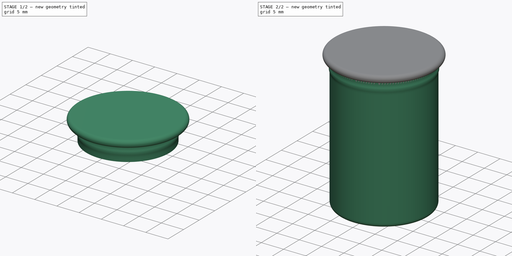
[diagram: build sequence overview — one tinted view per stage of 2, left to right]
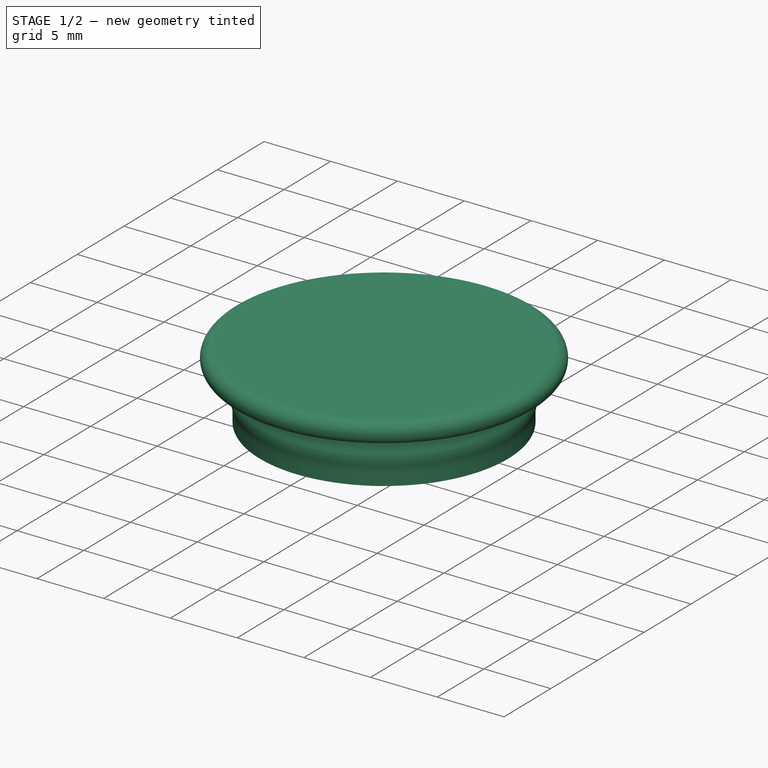
[diagram: stage 1 of 2 — iso view after this stage's code; geometry added in this stage tinted green]
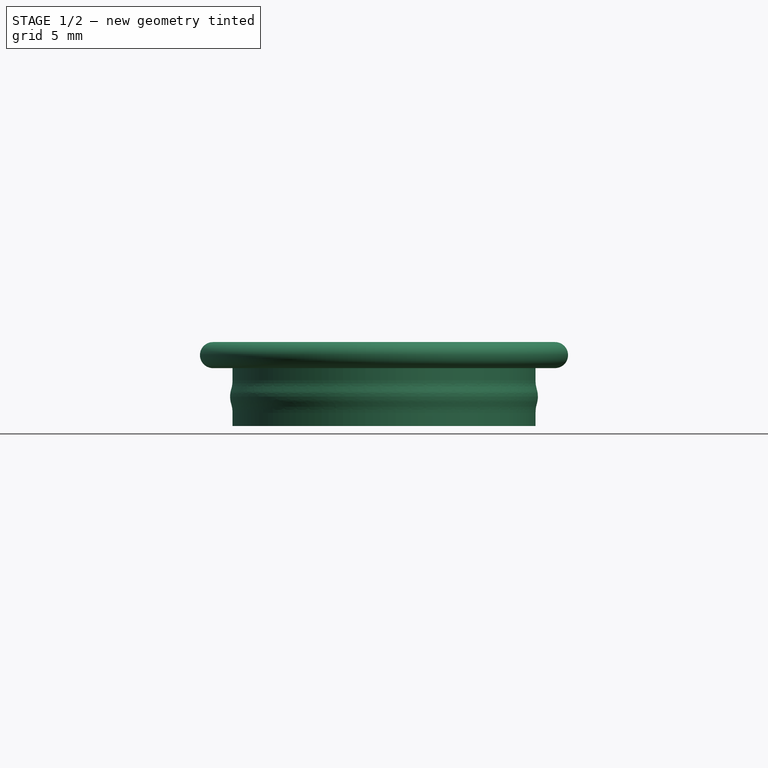
[diagram: stage 1 of 2 — front view after this stage's code; geometry added in this stage tinted green]
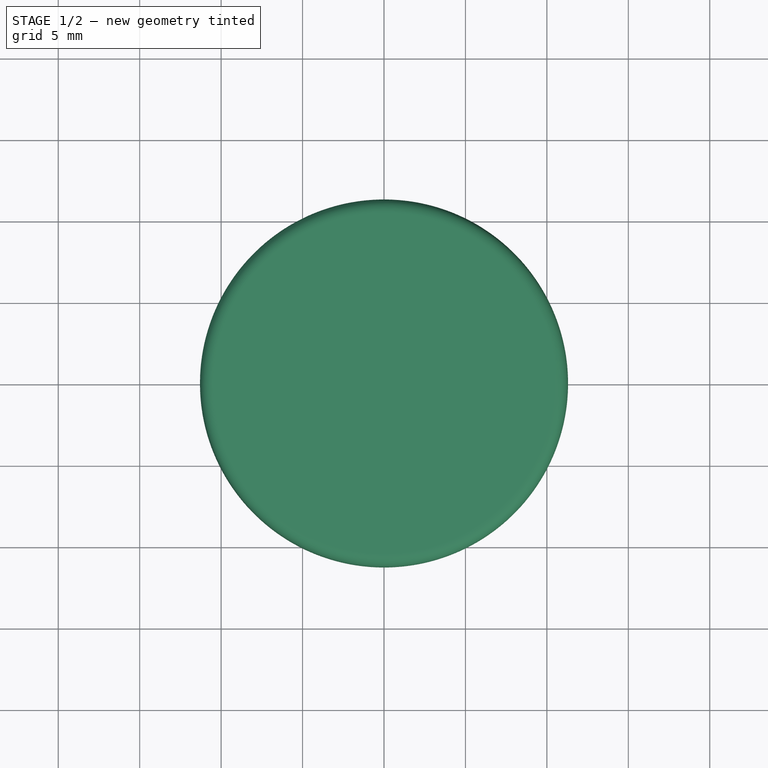
[diagram: stage 1 of 2 — top view after this stage's code; geometry added in this stage tinted green]
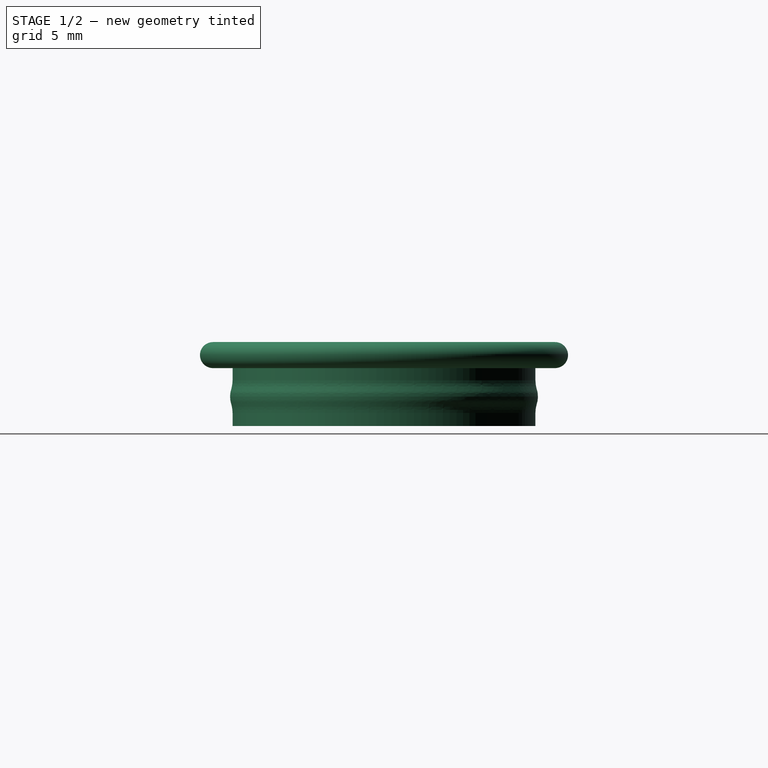
[diagram: stage 1 of 2 — right view after this stage's code; geometry added in this stage tinted green]
FCSTD DOCUMENT  (FreeCAD 0.20R29410 (Git))
Label: Capsule2
License: All rights reserved
LicenseURL: http://en.wikipedia.org/wiki/All_rights_reserved
objects: Sketcher::SketchObject×2, PartDesign::Revolution×2, PartDesign::Body×2, PartDesign::ShapeBinder×1, PartDesign::Fillet×1, PartDesign::Chamfer×1, Spreadsheet::Sheet×1
note: 13 computed .brp shape members not serialized (recipe doc carries the construction recipe); baked Part::Feature solids carry a one-line shape summary decoded from their .brp

FEATURE [PartDesign::Body] Body
  Group = -> [Sketch,Revolution]
  Origin = -> Origin
  Tip = -> Revolution
FEATURE [PartDesign::ShapeBinder] ShapeBinder
  Placement = pos=(0,0,0) rot=(1,0,0;1.5708rad)
  Support = -> [Sketch]
  TraceSupport = false
FEATURE [Sketcher::SketchObject] Sketch001
  ExternalGeometry = -> [ShapeBinder]
  FullyConstrained = true
  MapMode = 5
  Placement = pos=(0,0,0) rot=(1,0,0;1.5708rad)
  Support = -> [XZ_Plane001]
  expr: Constraints[1] = <<Spreadsheet>>.CapTopThickness
  expr: Constraints[35] = <<Spreadsheet>>.CapUnderhang
  expr: Constraints[3] = <<Spreadsheet>>.WallThickness + <<Spreadsheet>>.Tolerance
  expr: Constraints[54] = <<Spreadsheet>>.CapWallThickness
  expr: Constraints[55] = <<Spreadsheet>>.CapInset
  expr: Constraints[61] = <<Spreadsheet>>.CapOverhang
  sketch-geometry (23):
    g0: LineSegment StartX=-10.5 StartY=31.35 StartZ=0 EndX=0 EndY=31.35 EndZ=0
    g1: LineSegment StartX=-9.3 StartY=29.75 StartZ=0 EndX=-9.3 EndY=29 EndZ=0
    g2: LineSegment StartX=-10 StartY=29 StartZ=0 EndX=-9.3 EndY=29 EndZ=0
    g3: LineSegment StartX=-11.9083 StartY=29 StartZ=0 EndX=-11.2083 EndY=29 EndZ=0
    g4: LineSegment StartX=-11.9083 StartY=27 StartZ=0 EndX=-11.2083 EndY=27 EndZ=0
    g5: LineSegment StartX=-8.65 StartY=28 StartZ=0 EndX=-7.95 EndY=28 EndZ=0
    g6: ArcOfCircle CenterX=-11.2083 CenterY=29 CenterZ=0 NormalX=0 NormalY=0 NormalZ=1 AngleXU=0 Radius=1.90833 StartAngle=5.98541 EndAngle=6.28319
    g7: LineSegment StartX=-10.084 StartY=28.4401 StartZ=0 EndX=-9.38399 EndY=28.4401 EndZ=0
    g8: LineSegment StartX=-10.084 StartY=27.5599 StartZ=0 EndX=-9.38399 EndY=27.5599 EndZ=0
    g9: LineSegment StartX=-10 StartY=27 StartZ=0 EndX=-9.3 EndY=27 EndZ=0
    g10: ArcOfCircle CenterX=-7.95 CenterY=28 CenterZ=0 NormalX=0 NormalY=0 NormalZ=1 AngleXU=0 Radius=1.5 StartAngle=2.84381 EndAngle=3.43937
    g11: ArcOfCircle CenterX=-11.2083 CenterY=27 CenterZ=0 NormalX=0 NormalY=0 NormalZ=1 AngleXU=0 Radius=1.90833 StartAngle=3.95e-14 EndAngle=0.29778
    g12: LineSegment StartX=-9.3 StartY=27 StartZ=0 EndX=-9.3 EndY=26.2 EndZ=0
    g13: LineSegment StartX=-10.5 StartY=29.75 StartZ=0 EndX=-9.3 EndY=29.75 EndZ=0
    g14: LineSegment StartX=-9.3 StartY=26.2 StartZ=0 EndX=-8.5 EndY=26.2 EndZ=0
    g15: LineSegment StartX=-8.5 StartY=26.2 StartZ=0 EndX=0 EndY=26.2 EndZ=0
    g16: LineSegment StartX=-9.3 StartY=29.75 StartZ=0 EndX=-8.5 EndY=29.75 EndZ=0
    g17: LineSegment StartX=-8.5 StartY=29.75 StartZ=0 EndX=0 EndY=29.75 EndZ=0
    g18: LineSegment StartX=0 StartY=26.2 StartZ=0 EndX=0 EndY=29.75 EndZ=0
    g19: LineSegment StartX=0 StartY=29.75 StartZ=0 EndX=0 EndY=31.35 EndZ=0
    g20: LineSegment StartX=-8.5 StartY=26.2 StartZ=0 EndX=-8.5 EndY=29.75 EndZ=0
    g21: ArcOfCircle CenterX=-10.5 CenterY=30.55 CenterZ=0 NormalX=0 NormalY=0 NormalZ=1 AngleXU=0 Radius=0.8 StartAngle=1.5708 EndAngle=4.71239
    g22: LineSegment StartX=-10.5 StartY=30.55 StartZ=0 EndX=-11.3 EndY=30.55 EndZ=0
  constraints (62):
    c: Horizontal(g0)
    c: DistanceY(g17,g0) = 1.6
    c: Vertical(g1)
    c: DistanceX(g-3,g1) = 0.7
    c: Coincident(g2,g-4)
    c: Coincident(g2,g1)
    c: Horizontal(g2)
    c: Coincident(g3,g-4)
    c: Horizontal(g3)
    c: Coincident(g4,g-6)
    c: Coincident(g5,g-5)
    c: Horizontal(g5)
    c: Horizontal(g4)
    c: Equal(g2,g3)
    c: Equal(g3,g4)
    c: Equal(g4,g5)
    c: Coincident(g6,g3)
    c: Coincident(g6,g1)
    c: Coincident(g7,g-5)
    c: Horizontal(g7)
    c: Coincident(g6,g7)
    c: Coincident(g8,g-6)
    c: Horizontal(g8)
    c: Coincident(g9,g-6)
    c: Horizontal(g9)
    c: Coincident(g10,g5)
    c: Coincident(g10,g6)
    c: Coincident(g10,g8)
    c: Coincident(g11,g4)
    c: Coincident(g11,g10)
    c: Coincident(g11,g9)
    c: Coincident(g12,g11)
    c: Vertical(g12)
    c: Coincident(g14,g12)
    c: Coincident(g18,g15)
    c: DistanceY(g12,g12) = 0.8
    c: Coincident(g13,g16)
    c: Horizontal(g13)
    c: Coincident(g13,g1)
    c: Coincident(g19,g0)
    c: Coincident(g14,g15)
    c: Horizontal(g14)
    c: Horizontal(g15)
    c: Coincident(g16,g17)
    c: Horizontal(g16)
    c: Horizontal(g17)
    c: Coincident(g18,g19)
    c: Vertical(g18)
    c: Vertical(g19)
    c: PointOnObject(g-3,g18)
    c: Coincident(g17,g18)
    c: Coincident(g20,g14)
    c: Coincident(g20,g17)
    c: Vertical(g20)
    c: DistanceX(g14,g14) = 0.8
    c: DistanceY(g17,g-3) = 0.25
    c: Tangent(g21,g0) = 1.5708
    c: Tangent(g13,g21) = -1.5708
    c: Coincident(g22,g21)
    c: Horizontal(g22)
    c: PointOnObject(g22,g21)
    c: DistanceX(g22,g2) = 1.3
FEATURE [PartDesign::Revolution] Revolution001
  Angle = 360
  Axis = (0,-2e-16,1)
  Base = (0,0,0)
  Placement = pos=(0,0,0) rot=(1,0,0;1.5708rad)
  Profile = -> Sketch001
  ReferenceAxis = -> Sketch001 [V_Axis]
FEATURE [PartDesign::Fillet] Fillet
  Base = -> Revolution001 [Edge2]
  BaseFeature = -> Revolution001
  Placement = pos=(0,0,0) rot=(1,0,0;1.5708rad)
  Radius = 1
  SupportTransform = false
  UseAllEdges = false
  expr: Radius = <<Spreadsheet>>.CapsuleRadius / 10
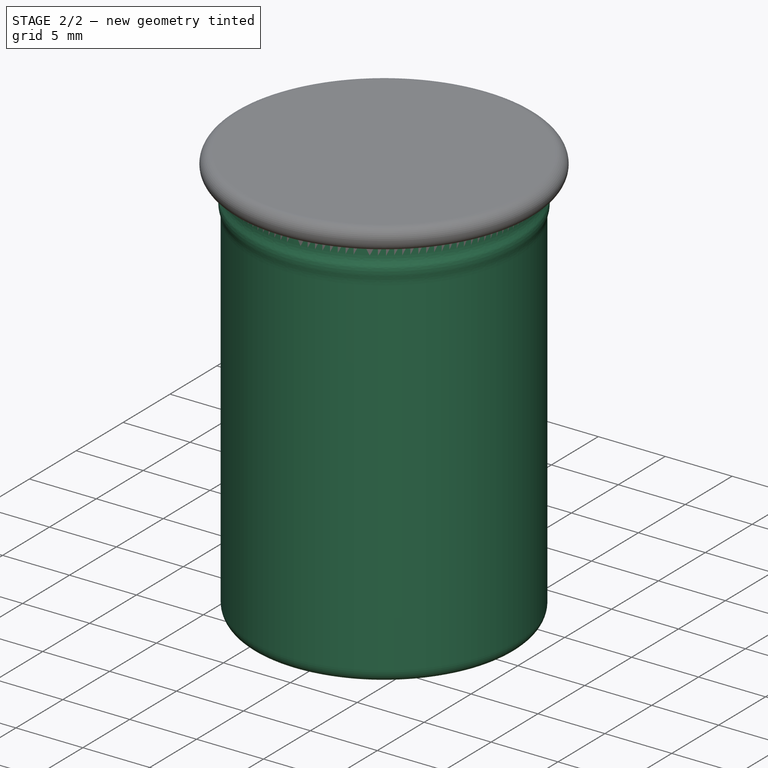
[diagram: stage 2 of 2 — iso view after this stage's code; geometry added in this stage tinted green]
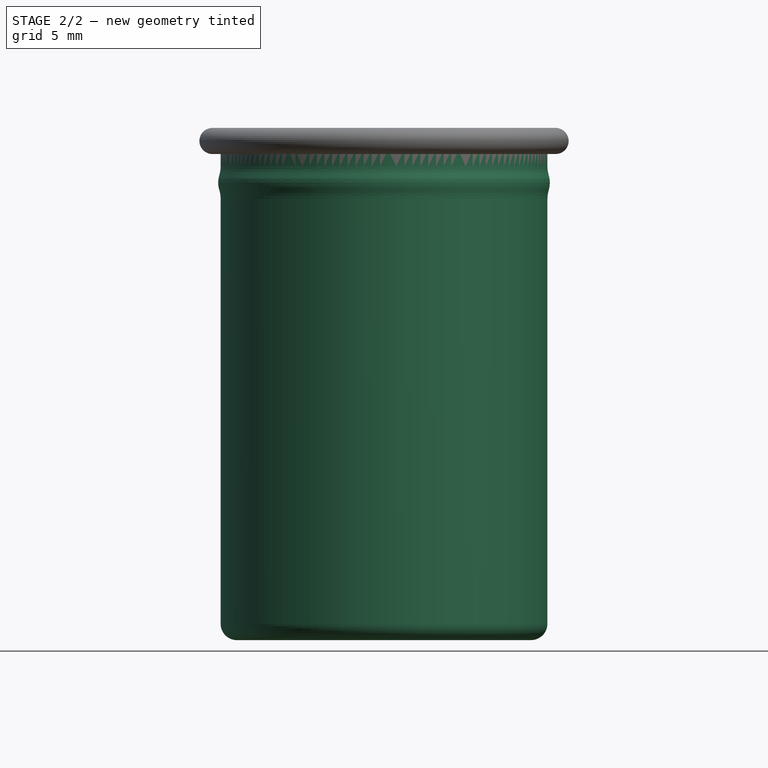
[diagram: stage 2 of 2 — front view after this stage's code; geometry added in this stage tinted green]
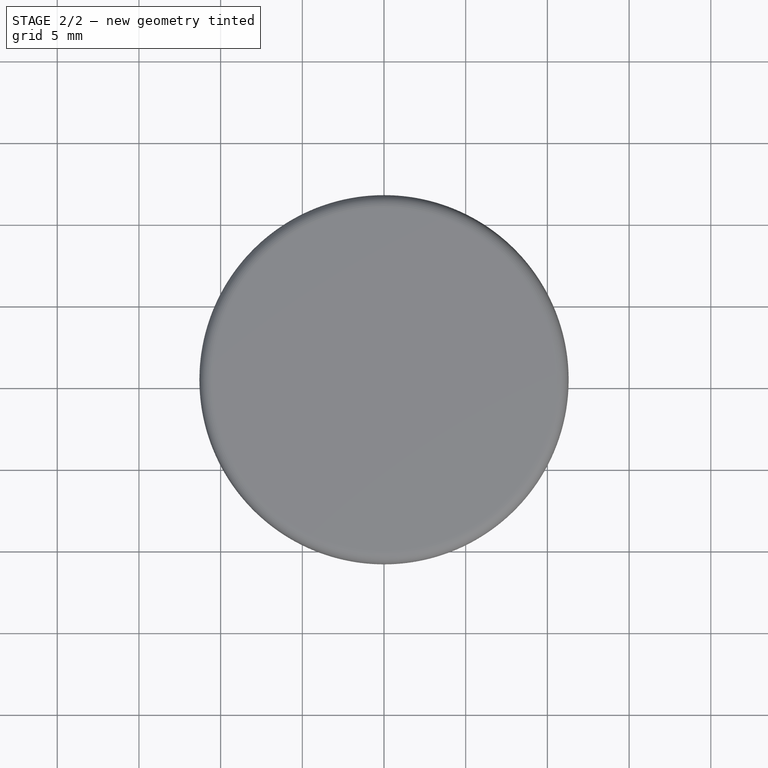
[diagram: stage 2 of 2 — top view after this stage's code; geometry added in this stage tinted green]
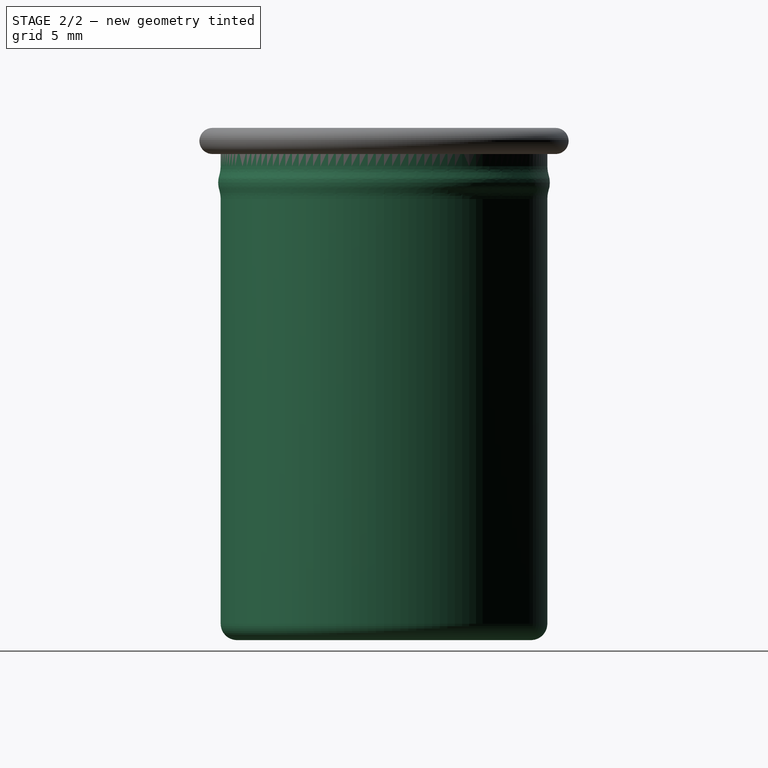
[diagram: stage 2 of 2 — right view after this stage's code; geometry added in this stage tinted green]
FEATURE [Sketcher::SketchObject] Sketch
  FullyConstrained = true
  MapMode = 5
  Placement = pos=(0,0,0) rot=(1,0,0;1.5708rad)
  Support = -> [XZ_Plane]
  expr: Constraints[11] = <<Spreadsheet>>.CapsuleRadius / 10
  expr: Constraints[17] = <<Spreadsheet>>.LockHeight
  expr: Constraints[18] = <<Spreadsheet>>.LockDistance
  expr: Constraints[26] = <<Spreadsheet>>.LockExpansion
  expr: Constraints[27] = <<Spreadsheet>>.LockRadius
  expr: Constraints[7] = <<Spreadsheet>>.CapsuleRadius
  expr: Constraints[8] = <<Spreadsheet>>.CapsuleHeight
  sketch-geometry (11):
    g0: LineSegment StartX=0 StartY=0 StartZ=0 EndX=-9 EndY=0 EndZ=0
    g1: LineSegment StartX=-10 StartY=30 StartZ=0 EndX=0 EndY=30 EndZ=0
    g2: LineSegment StartX=0 StartY=30 StartZ=0 EndX=0 EndY=0 EndZ=0
    g3: ArcOfCircle CenterX=-9 CenterY=1 CenterZ=0 NormalX=0 NormalY=0 NormalZ=1 AngleXU=0 Radius=1 StartAngle=3.14159 EndAngle=4.71239
    g4: LineSegment StartX=-10 StartY=29 StartZ=0 EndX=-10 EndY=30 EndZ=0
    g5: LineSegment StartX=-10 StartY=1 StartZ=0 EndX=-10 EndY=27 EndZ=0
    g6: LineSegment StartX=-10 StartY=27 StartZ=0 EndX=-10 EndY=29 EndZ=0
    g7: ArcOfCircle CenterX=-11.9083 CenterY=29 CenterZ=0 NormalX=0 NormalY=0 NormalZ=1 AngleXU=0 Radius=1.90833 StartAngle=5.98541 EndAngle=6.28319
    g8: ArcOfCircle CenterX=-11.9083 CenterY=27 CenterZ=0 NormalX=0 NormalY=0 NormalZ=1 AngleXU=0 Radius=1.90833 StartAngle=0 EndAngle=0.29778
    g9: ArcOfCircle CenterX=-8.65 CenterY=28 CenterZ=0 NormalX=0 NormalY=0 NormalZ=1 AngleXU=0 Radius=1.5 StartAngle=2.84381 EndAngle=3.43937
    g10: LineSegment StartX=-8.65 StartY=28 StartZ=0 EndX=-10.15 EndY=28 EndZ=0
  constraints (29):
    c: Coincident(g4,g1)
    c: Coincident(g1,g2)
    c: Coincident(g2,g0)
    c: Horizontal(g0)
    c: Horizontal(g1)
    c: Vertical(g2)
    c: Coincident(g0,g-1)
    c: DistanceX(g1,g1) = 10
    c: DistanceY(g2,g2) = 30
    c: Tangent(g0,g3) = 1.5708
    c: Tangent(g5,g3) = 1.5708
    c: Radius(g3) = 1
    c: Coincident(g6,g4)
    c: Vertical(g4)
    c: Coincident(g5,g6)
    c: Vertical(g5)
    c: Vertical(g6)
    c: DistanceY(g6,g6) = 2
    c: DistanceY(g4,g4) = 1
    c: Tangent(g7,g4) = -1.5708
    c: Tangent(g8,g5) = -1.5708
    c: Equal(g8,g7)
    c: Tangent(g9,g7) = 1.5708
    c: Coincident(g10,g9)
    c: PointOnObject(g10,g9)
    c: Horizontal(g10)
    c: DistanceX(g10,g1) = 0.15
    c: Radius(g9) = 1.5
    c: Tangent(g9,g8) = 1.5708
FEATURE [PartDesign::Revolution] Revolution
  Angle = 360
  Axis = (0,-2e-16,1)
  Base = (0,0,0)
  Placement = pos=(0,0,0) rot=(1,0,0;1.5708rad)
  Profile = -> Sketch
  ReferenceAxis = -> Sketch [V_Axis]
FEATURE [PartDesign::Chamfer] Chamfer
  Angle = 45
  Base = -> Fillet [Edge6]
  BaseFeature = -> Fillet
  ChamferType = 0
  FlipDirection = false
  Placement = pos=(0,0,0) rot=(1,0,0;1.5708rad)
  Size = 0.4
  Size2 = 1
  SupportTransform = false
  UseAllEdges = false
  expr: Size = <<Spreadsheet>>.CapWallThickness / 2
FEATURE [PartDesign::Body] Body001  label="Cap"
  Group = -> [ShapeBinder,Sketch001,Revolution001,Fillet,Chamfer]
  Origin = -> Origin001
  Tip = -> Chamfer
FEATURE [Spreadsheet::Sheet] Spreadsheet
  cells = B2=CapsuleRadius; C2(CapsuleRadius)==10mm; B3=CapsuleHeight; C3(CapsuleHeight)==30mm; B4=WallThickness; C4(WallThickness)==0.6mm; B5=Tolerance; C5(Tolerance)==0.1mm; B6=LockExpansion; C6(LockExpansion)==0.15mm; B7=LockHeight; C7(LockHeight)==2mm; B8=LockRadius; C8(LockRadius)==1.5mm; B9=LockDistance; C9(LockDistance)==1mm; B10=CapTopThickness; C10(CapTopThickness)==1.6mm; B11=CapWallThickness; C11(CapWallThickness)==0.8mm; B12=CapUnderhang; C12(CapUnderhang)==0.8mm; B13=CapOverhang; C13(CapOverhang)==1.3mm; B14=CapInset; C14(CapInset)==0.25mm
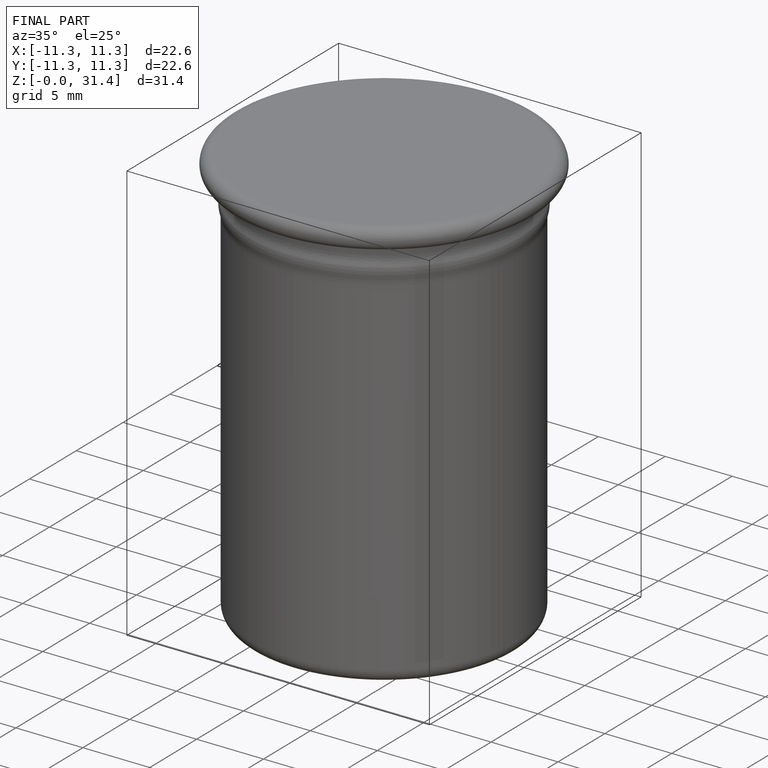
[diagram: finished part — iso view with bounding-box wireframe]
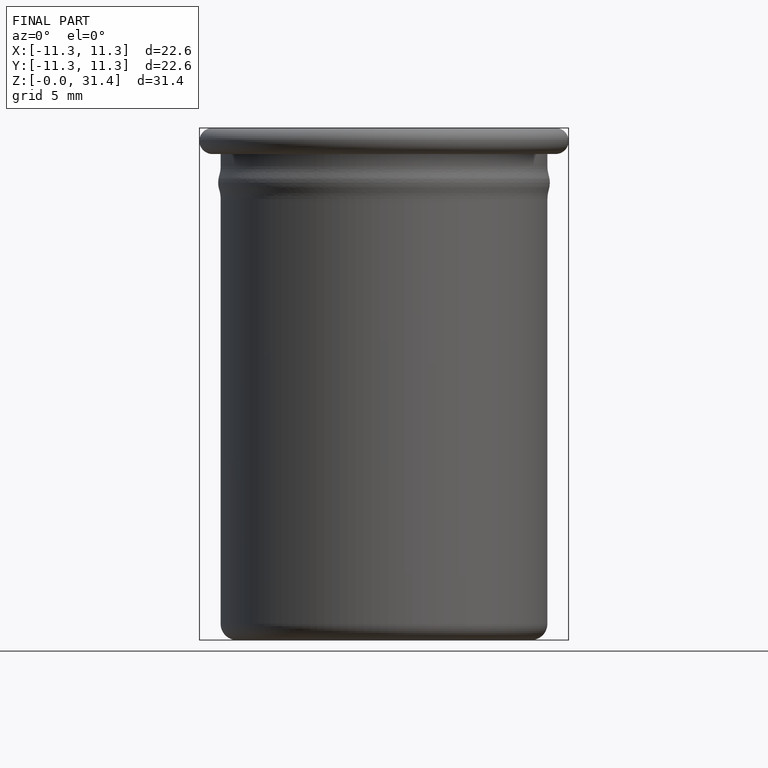
[diagram: finished part — front view with bounding-box wireframe]
